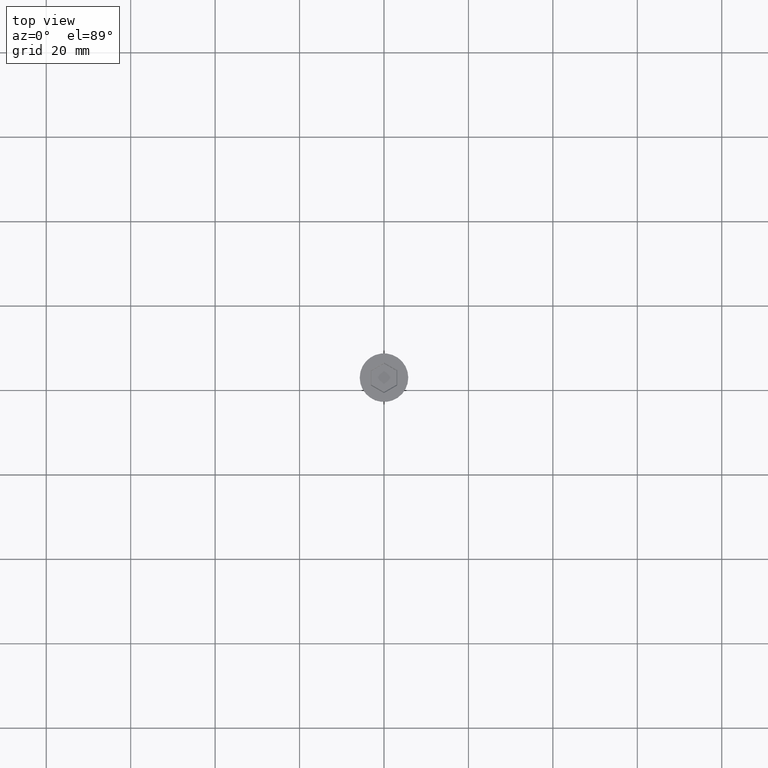
[diagram: clean part render]
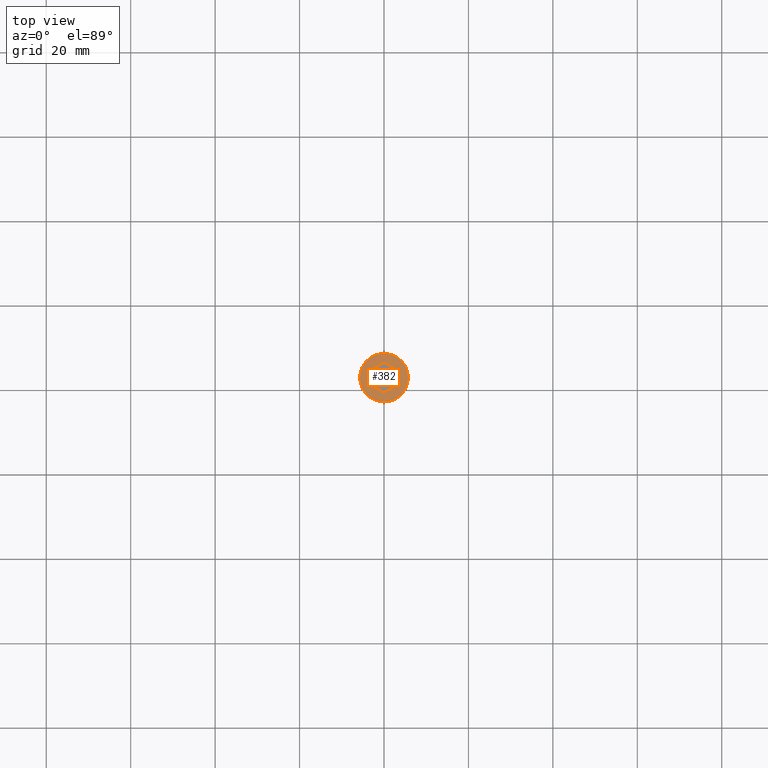
[diagram: same view with one face highlighted and labeled with its STEP entity id]
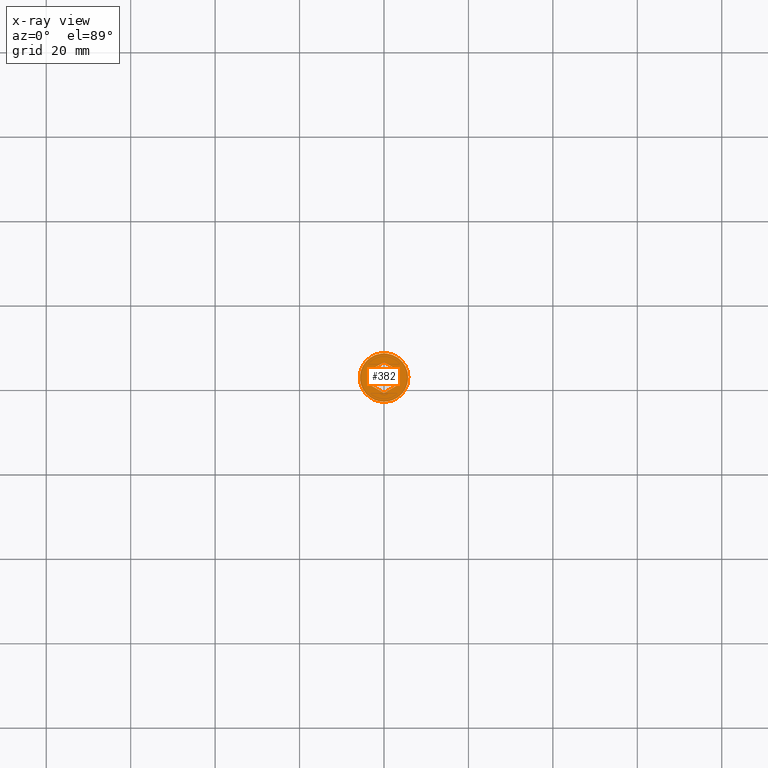
[diagram: x-ray of the same camera — body ghosted, the highlighted face saturated]
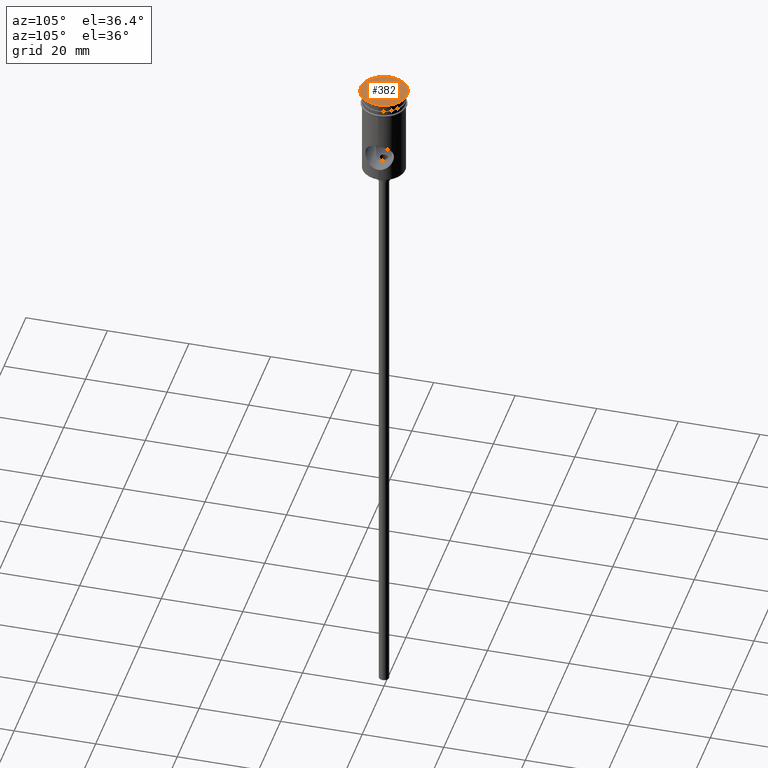
[diagram: same view with one face highlighted and labeled with its STEP entity id]
A machine part, top view. The second image highlights one B-rep face of the part: STEP entity #382.
The next image is the same camera in x-ray: the body ghosted, the highlighted face saturated — about 0% of this face is hidden behind the body in this view.
A second angle (auxiliary view) of the same face is appended — the face is thin or edge-on in the first view.
In plain terms, the highlighted planar face has unit normal (0, -0, 1).
Its self-contained STEP definition (entity closure, byte-faithful):
#12 = VERTEX_POINT ( 'NONE', #901 ) ;
#15 = DIRECTION ( 'NONE',  ( 1.000000000000000000, 0.000000000000000000, 0.000000000000000000 ) ) ;
#26 = CIRCLE ( 'NONE', #851, 5.750000000000000000 ) ;
#60 = EDGE_CURVE ( 'NONE', #859, #1299, #1157, .T. ) ;
#76 = DIRECTION ( 'NONE',  ( 0.000000000000000000, 1.000000000000000000, 0.000000000000000000 ) ) ;
#80 = CIRCLE ( 'NONE', #560, 5.750000000000000000 ) ;
#87 = ORIENTED_EDGE ( 'NONE', *, *, #270, .T. ) ;
#93 = DIRECTION ( 'NONE',  ( 0.8660254037844387076, -0.4999999999999998890, 0.000000000000000000 ) ) ;
#130 = VERTEX_POINT ( 'NONE', #543 ) ;
#131 = CARTESIAN_POINT ( 'NONE',  ( 0.000000000000000000, 0.000000000000000000, 0.000000000000000000 ) ) ;
#132 = CARTESIAN_POINT ( 'NONE',  ( -3.149999999999978595, -1.818653347947308818, 0.000000000000000000 ) ) ;
#155 = CARTESIAN_POINT ( 'NONE',  ( 5.750000000000000000, 0.000000000000000000, 0.000000000000000000 ) ) ;
#174 = VERTEX_POINT ( 'NONE', #1173 ) ;
#210 = DIRECTION ( 'NONE',  ( -0.8660254037844385966, 0.5000000000000001110, 0.000000000000000000 ) ) ;
#231 = CARTESIAN_POINT ( 'NONE',  ( -0.09999999999998937517, 3.579571668975661147, 0.000000000000000000 ) ) ;
#261 = VECTOR ( 'NONE', #959, 1000.000000000000000 ) ;
#270 = EDGE_CURVE ( 'NONE', #12, #859, #1187, .T. ) ;
#307 = CARTESIAN_POINT ( 'NONE',  ( 3.049999999999990052, 1.876388374866264863, 0.000000000000000000 ) ) ;
#311 = DIRECTION ( 'NONE',  ( 1.000000000000000000, 0.000000000000000000, 0.000000000000000000 ) ) ;
#315 = DIRECTION ( 'NONE',  ( -0.8660254037844387076, -0.4999999999999998890, 0.000000000000000000 ) ) ;
#337 = ORIENTED_EDGE ( 'NONE', *, *, #1295, .T. ) ;
#345 = FACE_OUTER_BOUND ( 'NONE', #887, .T. ) ;
#365 = DIRECTION ( 'NONE',  ( 0.8660254037844385966, 0.5000000000000001110, 0.000000000000000000 ) ) ;
#375 = LINE ( 'NONE', #231, #903 ) ;
#382 = ADVANCED_FACE ( 'NONE', ( #659, #345 ), #1096, .T. ) ;
#390 = VERTEX_POINT ( 'NONE', #550 ) ;
#484 = CARTESIAN_POINT ( 'NONE',  ( 3.149999999999979039, 1.818653347947308596, 0.000000000000000000 ) ) ;
#500 = VERTEX_POINT ( 'NONE', #155 ) ;
#519 = DIRECTION ( 'NONE',  ( 1.000000000000000000, 0.000000000000000000, 0.000000000000000000 ) ) ;
#524 = CARTESIAN_POINT ( 'NONE',  ( 3.149999999999978151, -1.703183294109396284, 0.000000000000000000 ) ) ;
#534 = EDGE_CURVE ( 'NONE', #130, #500, #80, .T. ) ;
#543 = CARTESIAN_POINT ( 'NONE',  ( -5.750000000000000000, 7.041719095097280880E-16, 0.000000000000000000 ) ) ;
#550 = CARTESIAN_POINT ( 'NONE',  ( 3.149999999999978151, -1.818653347947309262, 0.000000000000000000 ) ) ;
#560 = AXIS2_PLACEMENT_3D ( 'NONE', #947, #1395, #519 ) ;
#619 = EDGE_LOOP ( 'NONE', ( #87, #1384, #806, #639, #841, #671 ) ) ;
#639 = ORIENTED_EDGE ( 'NONE', *, *, #1141, .T. ) ;
#659 = FACE_BOUND ( 'NONE', #619, .T. ) ;
#670 = CARTESIAN_POINT ( 'NONE',  ( -3.149999999999978595, 1.703183294109395840, 0.000000000000000000 ) ) ;
#671 = ORIENTED_EDGE ( 'NONE', *, *, #1113, .T. ) ;
#698 = VECTOR ( 'NONE', #76, 1000.000000000000000 ) ;
#702 = VECTOR ( 'NONE', #93, 1000.000000000000000 ) ;
#743 = LINE ( 'NONE', #524, #261 ) ;
#797 = EDGE_CURVE ( 'NONE', #1299, #174, #375, .T. ) ;
#806 = ORIENTED_EDGE ( 'NONE', *, *, #797, .T. ) ;
#841 = ORIENTED_EDGE ( 'NONE', *, *, #1136, .T. ) ;
#851 = AXIS2_PLACEMENT_3D ( 'NONE', #131, #999, #15 ) ;
#857 = CARTESIAN_POINT ( 'NONE',  ( 0.000000000000000000, 0.000000000000000000, 0.000000000000000000 ) ) ;
#859 = VERTEX_POINT ( 'NONE', #132 ) ;
#875 = CARTESIAN_POINT ( 'NONE',  ( -3.049999999999989608, -1.876388374866265085, 0.000000000000000000 ) ) ;
#881 = CARTESIAN_POINT ( 'NONE',  ( -3.149999999999978595, 1.818653347947308374, 0.000000000000000000 ) ) ;
#887 = EDGE_LOOP ( 'NONE', ( #337, #1154 ) ) ;
#901 = CARTESIAN_POINT ( 'NONE',  ( -5.257856505504653693E-16, -3.637306695894617636, 0.000000000000000000 ) ) ;
#903 = VECTOR ( 'NONE', #365, 1000.000000000000114 ) ;
#947 = CARTESIAN_POINT ( 'NONE',  ( 0.000000000000000000, 0.000000000000000000, 0.000000000000000000 ) ) ;
#959 = DIRECTION ( 'NONE',  ( -2.546295930062981593E-16, -1.000000000000000000, 0.000000000000000000 ) ) ;
#963 = VERTEX_POINT ( 'NONE', #484 ) ;
#999 = DIRECTION ( 'NONE',  ( -0.000000000000000000, -0.000000000000000000, 1.000000000000000000 ) ) ;
#1006 = VECTOR ( 'NONE', #210, 1000.000000000000114 ) ;
#1096 = PLANE ( 'NONE',  #1417 ) ;
#1113 = EDGE_CURVE ( 'NONE', #390, #12, #1408, .T. ) ;
#1136 = EDGE_CURVE ( 'NONE', #963, #390, #743, .T. ) ;
#1141 = EDGE_CURVE ( 'NONE', #174, #963, #1286, .T. ) ;
#1154 = ORIENTED_EDGE ( 'NONE', *, *, #534, .T. ) ;
#1157 = LINE ( 'NONE', #670, #698 ) ;
#1173 = CARTESIAN_POINT ( 'NONE',  ( -3.163467028841980443E-16, 3.637306695894617192, 0.000000000000000000 ) ) ;
#1187 = LINE ( 'NONE', #875, #1006 ) ;
#1220 = VECTOR ( 'NONE', #315, 1000.000000000000000 ) ;
#1286 = LINE ( 'NONE', #307, #702 ) ;
#1295 = EDGE_CURVE ( 'NONE', #500, #130, #26, .T. ) ;
#1298 = DIRECTION ( 'NONE',  ( 0.000000000000000000, -0.000000000000000000, 1.000000000000000000 ) ) ;
#1299 = VERTEX_POINT ( 'NONE', #881 ) ;
#1384 = ORIENTED_EDGE ( 'NONE', *, *, #60, .T. ) ;
#1395 = DIRECTION ( 'NONE',  ( -0.000000000000000000, -0.000000000000000000, 1.000000000000000000 ) ) ;
#1408 = LINE ( 'NONE', #1432, #1220 ) ;
#1417 = AXIS2_PLACEMENT_3D ( 'NONE', #857, #1298, #311 ) ;
#1432 = CARTESIAN_POINT ( 'NONE',  ( 0.09999999999998870903, -3.579571668975661591, 0.000000000000000000 ) ) ;